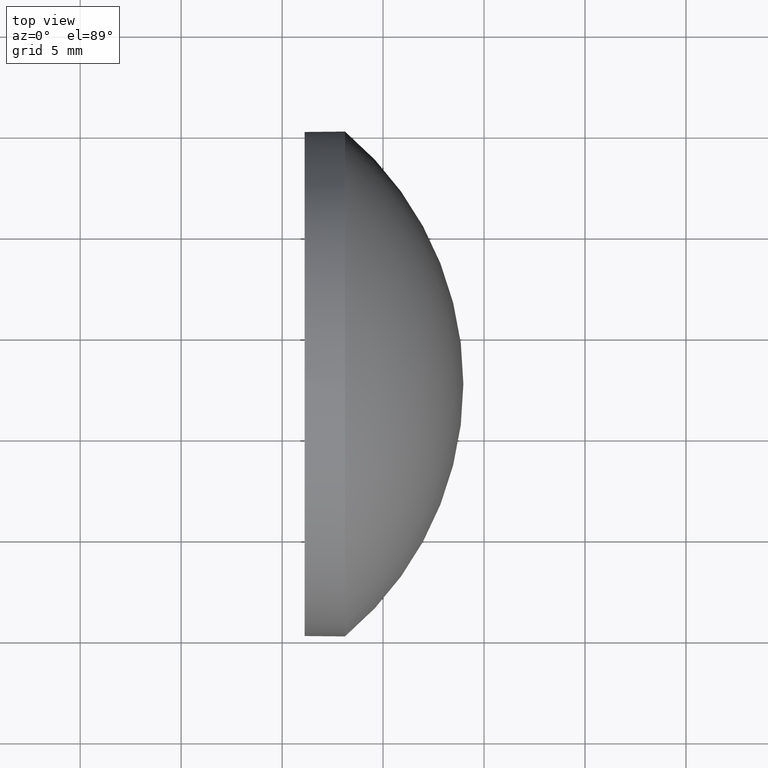
[diagram: clean part render]
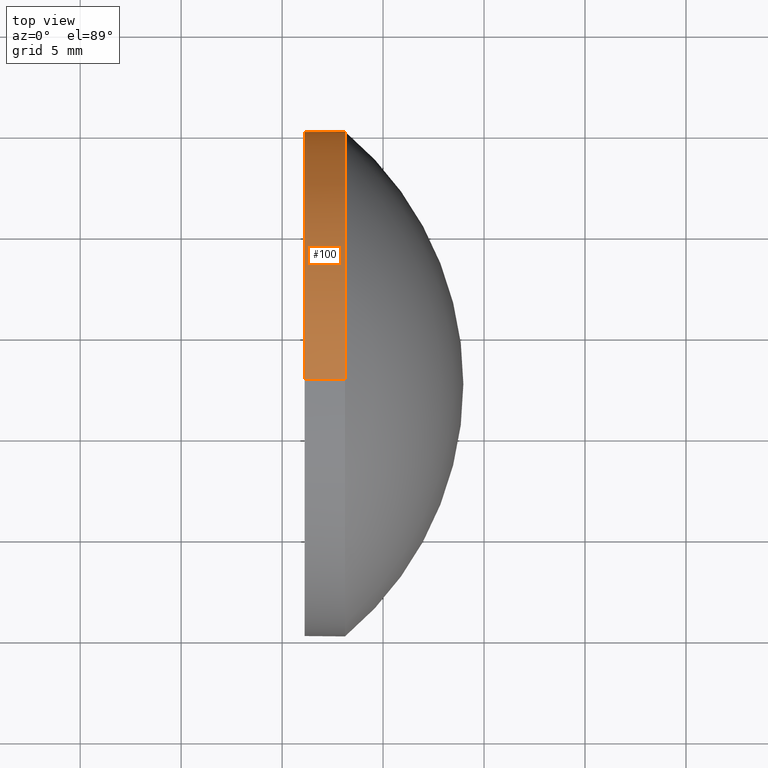
[diagram: same view with one face highlighted and labeled with its STEP entity id]
A machine part, top view. The second image highlights one B-rep face of the part: STEP entity #100.
In plain terms, the highlighted cylindrical surface (partial cylindrical patch) has radius 12.5 mm, axis along (-1, -0, -0).
Its self-contained STEP definition (entity closure, byte-faithful):
#3 = DIRECTION ( 'NONE',  ( -1.000000000000000000, -0.0000000000000000000, -0.0000000000000000000 ) ) ;
#4 = CARTESIAN_POINT ( 'NONE',  ( 543.1151502343923300, 132.5985296569771200, -12.49999999999998400 ) ) ;
#7 = DIRECTION ( 'NONE',  ( -1.000000000000000000, -0.0000000000000000000, -0.0000000000000000000 ) ) ;
#8 = CARTESIAN_POINT ( 'NONE',  ( 543.1151502343923300, 132.5985296569771200, 12.49999999999998400 ) ) ;
#10 = EDGE_CURVE ( 'NONE', #53, #12, #121, .T. ) ;
#12 = VERTEX_POINT ( 'NONE', #152 ) ;
#14 = ORIENTED_EDGE ( 'NONE', *, *, #47, .F. ) ;
#36 = AXIS2_PLACEMENT_3D ( 'NONE', #163, #113, #130 ) ;
#38 = CARTESIAN_POINT ( 'NONE',  ( 541.1151502343923300, 132.5985296569771200, 12.49999999999998400 ) ) ;
#47 = EDGE_CURVE ( 'NONE', #153, #12, #85, .T. ) ;
#53 = VERTEX_POINT ( 'NONE', #4 ) ;
#57 = CIRCLE ( 'NONE', #112, 12.49999999999998400 ) ;
#63 = EDGE_CURVE ( 'NONE', #135, #123, #125, .T. ) ;
#66 = DIRECTION ( 'NONE',  ( 0.0000000000000000000, 0.0000000000000000000, 1.000000000000000000 ) ) ;
#68 = CARTESIAN_POINT ( 'NONE',  ( 539.6031189925024600, 132.5985296569771200, 0.0000000000000000000 ) ) ;
#70 = VECTOR ( 'NONE', #132, 1000.000000000000000 ) ;
#71 = ORIENTED_EDGE ( 'NONE', *, *, #10, .T. ) ;
#84 = CARTESIAN_POINT ( 'NONE',  ( 539.6031189925024600, 132.5985296569771200, -12.49999999999998400 ) ) ;
#85 = CIRCLE ( 'NONE', #174, 12.49999999999998400 ) ;
#92 = CARTESIAN_POINT ( 'NONE',  ( 539.6031189925024600, 132.5985296569771200, 12.49999999999998400 ) ) ;
#94 = ORIENTED_EDGE ( 'NONE', *, *, #142, .F. ) ;
#100 = ADVANCED_FACE ( 'NONE', ( #178 ), #109, .T. ) ;
#101 = VECTOR ( 'NONE', #103, 1000.000000000000000 ) ;
#103 = DIRECTION ( 'NONE',  ( -1.000000000000000000, -0.0000000000000000000, -0.0000000000000000000 ) ) ;
#107 = DIRECTION ( 'NONE',  ( 0.0000000000000000000, 0.0000000000000000000, 1.000000000000000000 ) ) ;
#109 = CYLINDRICAL_SURFACE ( 'NONE', #126, 12.49999999999998400 ) ;
#111 = ORIENTED_EDGE ( 'NONE', *, *, #63, .T. ) ;
#112 = AXIS2_PLACEMENT_3D ( 'NONE', #183, #122, #107 ) ;
#113 = DIRECTION ( 'NONE',  ( -1.000000000000000000, -0.0000000000000000000, -0.0000000000000000000 ) ) ;
#116 = LINE ( 'NONE', #92, #70 ) ;
#118 = DIRECTION ( 'NONE',  ( 0.0000000000000000000, 0.0000000000000000000, 1.000000000000000000 ) ) ;
#121 = LINE ( 'NONE', #84, #101 ) ;
#122 = DIRECTION ( 'NONE',  ( -1.000000000000000000, -0.0000000000000000000, -0.0000000000000000000 ) ) ;
#123 = VERTEX_POINT ( 'NONE', #158 ) ;
#125 = CIRCLE ( 'NONE', #36, 12.49999999999998400 ) ;
#126 = AXIS2_PLACEMENT_3D ( 'NONE', #68, #7, #118 ) ;
#129 = CARTESIAN_POINT ( 'NONE',  ( 541.1151502343923300, 132.5985296569771200, 0.0000000000000000000 ) ) ;
#130 = DIRECTION ( 'NONE',  ( 0.0000000000000000000, 0.0000000000000000000, 1.000000000000000000 ) ) ;
#132 = DIRECTION ( 'NONE',  ( -1.000000000000000000, -0.0000000000000000000, -0.0000000000000000000 ) ) ;
#135 = VERTEX_POINT ( 'NONE', #8 ) ;
#142 = EDGE_CURVE ( 'NONE', #135, #153, #116, .T. ) ;
#152 = CARTESIAN_POINT ( 'NONE',  ( 541.1151502343923300, 132.5985296569771200, -12.49999999999998400 ) ) ;
#153 = VERTEX_POINT ( 'NONE', #38 ) ;
#158 = CARTESIAN_POINT ( 'NONE',  ( 543.1151502343923300, 145.0985296569771200, 0.0000000000000000000 ) ) ;
#160 = EDGE_LOOP ( 'NONE', ( #168, #71, #14, #94, #111 ) ) ;
#163 = CARTESIAN_POINT ( 'NONE',  ( 543.1151502343923300, 132.5985296569771200, 0.0000000000000000000 ) ) ;
#168 = ORIENTED_EDGE ( 'NONE', *, *, #176, .T. ) ;
#174 = AXIS2_PLACEMENT_3D ( 'NONE', #129, #3, #66 ) ;
#176 = EDGE_CURVE ( 'NONE', #123, #53, #57, .T. ) ;
#178 = FACE_OUTER_BOUND ( 'NONE', #160, .T. ) ;
#183 = CARTESIAN_POINT ( 'NONE',  ( 543.1151502343923300, 132.5985296569771200, 0.0000000000000000000 ) ) ;